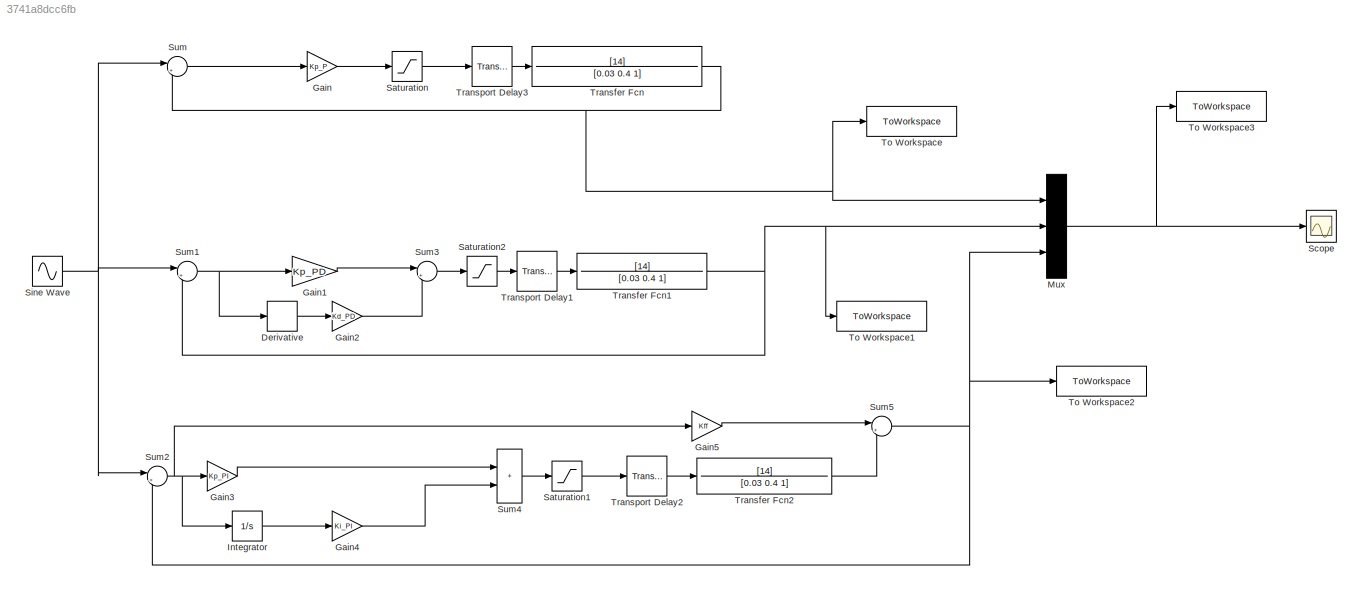
MODEL slx_3741a8dcc6fb
KIND model
CONFIG AbsTol = auto
CONFIG EnableMultiTasking = off
CONFIG FixedStep = auto
CONFIG MaxStep = auto
CONFIG MinStep = auto
CONFIG RelTol = 1e-3
CONFIG SampleTimeConstraint = Unconstrained
CONFIG SolverName = VariableStepAuto
CONFIG StartTime = 0.0
CONFIG StopTime = 10.0
BLOCK [Derivative] Derivative
BLOCK [Gain] Gain
  Gain = Kp_P
BLOCK [Gain] Gain1
  Gain = Kp_PD
BLOCK [Gain] Gain2
  Gain = Kd_PD
BLOCK [Gain] Gain3
  Gain = Kp_PI
BLOCK [Gain] Gain4
  Gain = Ki_PI
BLOCK [Gain] Gain5
  Gain = Kff
BLOCK [Integrator] Integrator
BLOCK [Mux] Mux
  DisplayOption = bar
  Inputs = 3
BLOCK [Saturate] Saturation
  LowerLimit = -100
  UpperLimit = 100
BLOCK [Saturate] Saturation1
  LowerLimit = -100
  UpperLimit = 100
BLOCK [Saturate] Saturation2
  LowerLimit = -100
  UpperLimit = 100
BLOCK [Scope] Scope
  ActiveDisplayYMaximum = 187.00389693448977
  ActiveDisplayYMinimum = -176.01357838165748
  ContainerLayout = {"WindowBounds":[80,66,1280,768]}
  Floating = off
  GraphicalSettings = {"AxesScalingProperties":{"AlignXAxis":"Center","AlignYAxis":"Center","AutoScaleXAxisLimits":false,"AxesScaling":"Manual","AxesScalingNumUpdates":10,"ExpandOnly":true,"ScaleAxesLimitsAtStop":false,"XAxisDataRange":100,"YAxisDataRange":80},"DisplayProperties":{"ColorOrder":["auto","auto","auto","auto","auto","auto","auto","auto","auto","auto","auto","auto","auto","auto","auto","auto","auto","auto",...<+2254ch>
  MultipleDisplayCache = [{"MaxYLimMag":181.56950359143369,"MaxYLimReal":187.00389693448977,"MinYLimMag":0,"MinYLimReal":-176.01357838165748,"PlotAsMagnitudePhase":false,"ShowGrid":true,"ShowLegend":false,"Title":"%<SignalLabel>","YLabel":""}]
  NumInputPorts = 1
  ScopeFrameLocation = container
  Visible = on
  WasSavedAsWebScope = on
  WindowPosition = [80.000000,66.000000,1280.000000,768.000000,]
BLOCK [Sin] Sine Wave
  Frequency = 2*pi*0.5
  SampleTime = 0
BLOCK [Sum] Sum
  Inputs = |+-
BLOCK [Sum] Sum1
  Inputs = |+-
BLOCK [Sum] Sum2
  Inputs = |+-
BLOCK [Sum] Sum3
  Inputs = |++
BLOCK [Sum] Sum4
  IconShape = rectangular
  Inputs = |++
BLOCK [Sum] Sum5
  Inputs = |++
BLOCK [ToWorkspace] To Workspace
  FixptAsFi = on
  MaxDataPoints = inf
  SampleTime = -1
  VariableName = Raspuns_P
BLOCK [ToWorkspace] To Workspace1
  FixptAsFi = on
  MaxDataPoints = inf
  SampleTime = -1
  VariableName = Raspuns_PD
BLOCK [ToWorkspace] To Workspace2
  FixptAsFi = on
  MaxDataPoints = inf
  SampleTime = -1
  VariableName = Raspuns_PI_FFW
BLOCK [ToWorkspace] To Workspace3
  FixptAsFi = on
  MaxDataPoints = inf
  SampleTime = -1
  VariableName = Raspuns
BLOCK [TransferFcn] Transfer Fcn
  Denominator = [0.03 0.4 1]
  Numerator = [14]
BLOCK [TransferFcn] Transfer Fcn1
  Denominator = [0.03 0.4 1]
  Numerator = [14]
BLOCK [TransferFcn] Transfer Fcn2
  Denominator = [0.03 0.4 1]
  Numerator = [14]
BLOCK [TransportDelay] Transport Delay1
  DelayTime = 0.05
BLOCK [TransportDelay] Transport Delay2
  DelayTime = 0.05
BLOCK [TransportDelay] Transport Delay3
  DelayTime = 0.05
LINE Derivative:1 -> Gain2:1
LINE Gain1:1 -> Sum3:1
LINE Gain2:1 -> Sum3:2
LINE Gain3:1 -> Sum4:1
LINE Gain4:1 -> Sum4:2
LINE Gain5:1 -> Sum5:1
LINE Gain:1 -> Saturation:1
LINE Integrator:1 -> Gain4:1
NET Mux:1 -> Scope:1, To Workspace3:1
LINE Saturation1:1 -> Transport Delay2:1
LINE Saturation2:1 -> Transport Delay1:1
LINE Saturation:1 -> Transport Delay3:1
NET Sine Wave:1 -> Sum1:1, Sum2:1, Sum:1
NET Sum1:1 -> Derivative:1, Gain1:1
NET Sum2:1 -> Gain3:1, Gain5:1, Integrator:1
LINE Sum3:1 -> Saturation2:1
LINE Sum4:1 -> Saturation1:1
NET Sum5:1 -> Mux:3, Sum2:2, To Workspace2:1
LINE Sum:1 -> Gain:1
NET Transfer Fcn1:1 -> Mux:2, Sum1:2, To Workspace1:1
LINE Transfer Fcn2:1 -> Sum5:2
NET Transfer Fcn:1 -> Mux:1, Sum:2, To Workspace:1
LINE Transport Delay1:1 -> Transfer Fcn1:1
LINE Transport Delay2:1 -> Transfer Fcn2:1
LINE Transport Delay3:1 -> Transfer Fcn:1
note: NET lines group one-source signal fan-out (src -> all destinations, sorted); 1:1 wires keep LINE
